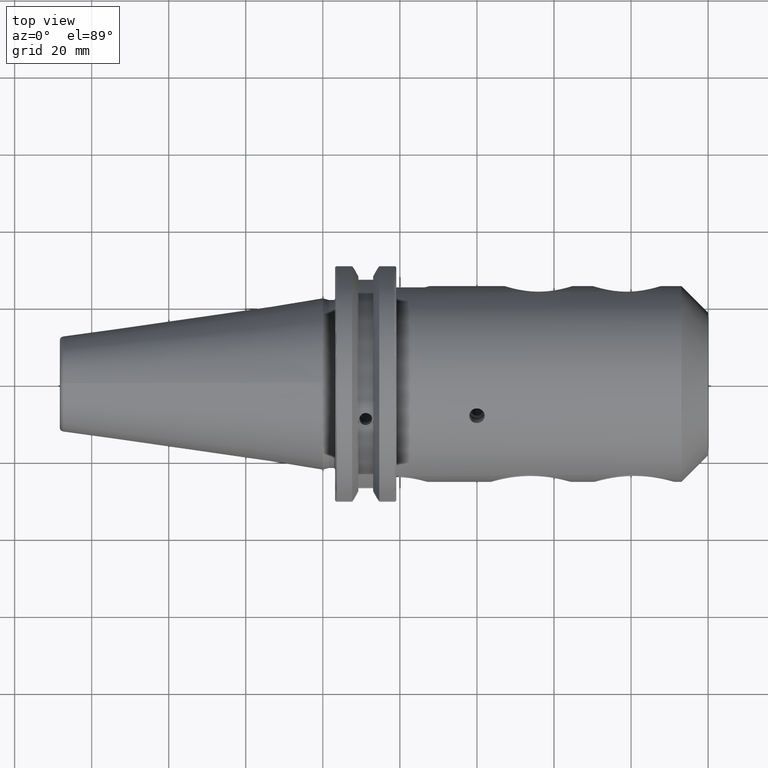
[diagram: clean part render]
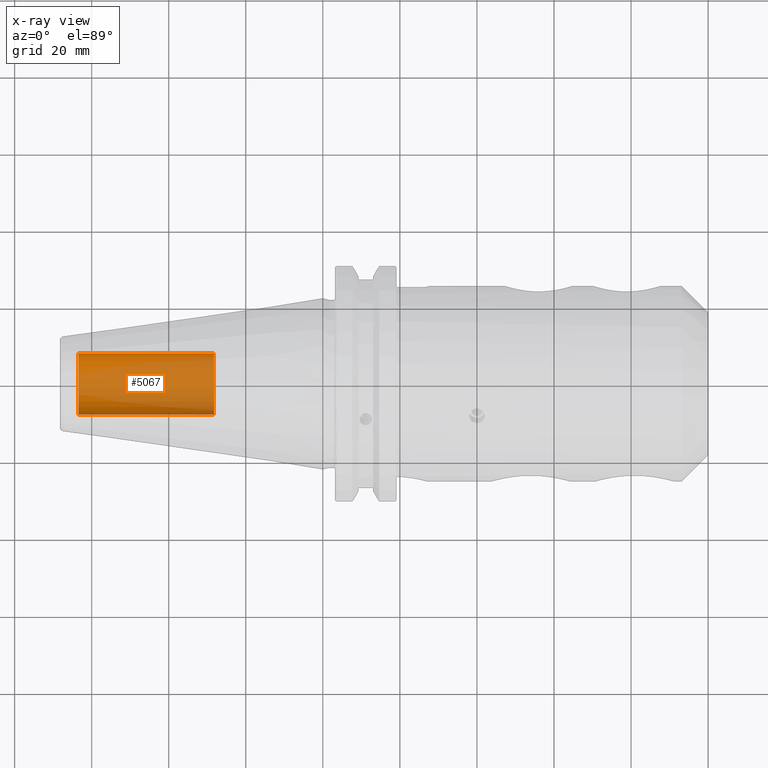
[diagram: x-ray — body ghosted, one internal face saturated and labeled with its STEP entity id]
A machine part, top view, then the same camera in x-ray: the body is ghosted and one INTERNAL B-rep face — a face not visible from any outside direction — is saturated and labeled: STEP entity #5067.
In plain terms, the highlighted cylindrical surface (edge-blend (fillet) strip) has radius 7.9375 mm, axis along (-1, 0, 0).
Its self-contained STEP definition (entity closure, byte-faithful):
#5002=CARTESIAN_POINT('',(-6.345E1,0.E0,0.E0));
#5003=DIRECTION('',(1.E0,0.E0,0.E0));
#5004=DIRECTION('',(0.E0,-1.E0,0.E0));
#5005=AXIS2_PLACEMENT_3D('',#5002,#5003,#5004);
#5012=DIRECTION('',(1.E0,0.E0,0.E0));
#5013=VECTOR('',#5012,3.52E1);
#5014=CARTESIAN_POINT('',(-6.345E1,-7.9375E0,0.E0));
#5015=LINE('',#5014,#5013);
#5016=DIRECTION('',(1.E0,0.E0,0.E0));
#5017=VECTOR('',#5016,3.52E1);
#5018=CARTESIAN_POINT('',(-6.345E1,7.9375E0,0.E0));
#5019=LINE('',#5018,#5017);
#5025=CARTESIAN_POINT('',(-2.825E1,0.E0,0.E0));
#5026=DIRECTION('',(-1.E0,0.E0,0.E0));
#5027=DIRECTION('',(0.E0,1.E0,0.E0));
#5028=AXIS2_PLACEMENT_3D('',#5025,#5026,#5027);
#5040=CARTESIAN_POINT('',(-2.825E1,7.9375E0,0.E0));
#5041=CARTESIAN_POINT('',(-2.825E1,-7.9375E0,0.E0));
#5042=VERTEX_POINT('',#5040);
#5043=VERTEX_POINT('',#5041);
#5044=CARTESIAN_POINT('',(-6.345E1,7.9375E0,0.E0));
#5045=CARTESIAN_POINT('',(-6.345E1,-7.9375E0,0.E0));
#5046=VERTEX_POINT('',#5044);
#5047=VERTEX_POINT('',#5045);
#5052=CARTESIAN_POINT('',(2.000622743963E1,0.E0,0.E0));
#5053=DIRECTION('',(-1.E0,0.E0,0.E0));
#5054=DIRECTION('',(0.E0,1.E0,0.E0));
#5055=AXIS2_PLACEMENT_3D('',#5052,#5053,#5054);
#5056=CYLINDRICAL_SURFACE('',#5055,7.9375E0);
#5058=ORIENTED_EDGE('',*,*,#5057,.T.);
#5060=ORIENTED_EDGE('',*,*,#5059,.T.);
#5062=ORIENTED_EDGE('',*,*,#5061,.T.);
#5064=ORIENTED_EDGE('',*,*,#5063,.F.);
#5065=EDGE_LOOP('',(#5058,#5060,#5062,#5064));
#5066=FACE_OUTER_BOUND('',#5065,.F.);
#5067=ADVANCED_FACE('',(#5066),#5056,.F.);
#5006=CIRCLE('',#5005,7.9375E0);
#5029=CIRCLE('',#5028,7.9375E0);
#5057=EDGE_CURVE('',#5047,#5046,#5006,.T.);
#5059=EDGE_CURVE('',#5046,#5042,#5019,.T.);
#5061=EDGE_CURVE('',#5042,#5043,#5029,.T.);
#5063=EDGE_CURVE('',#5047,#5043,#5015,.T.);